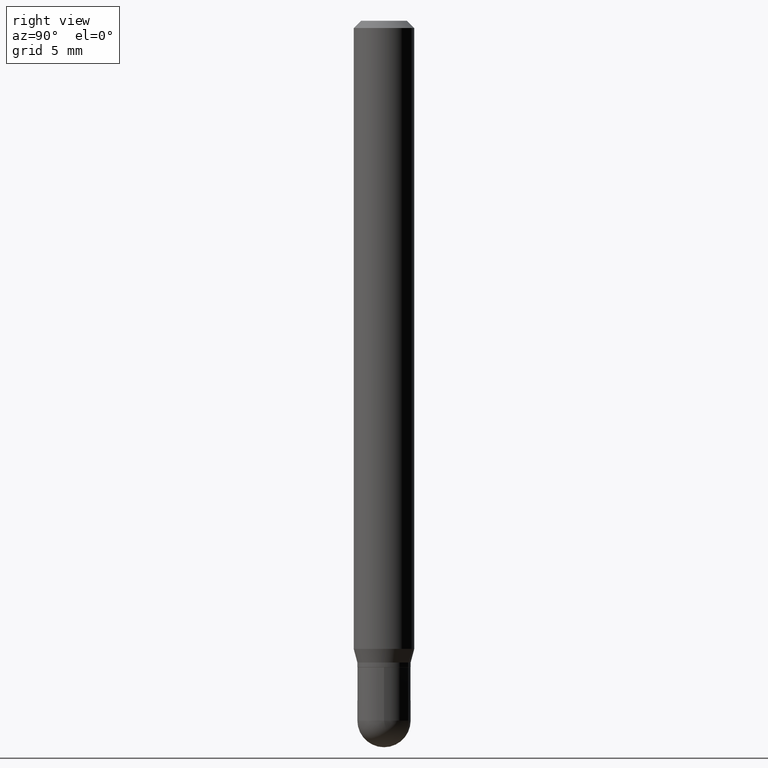
[diagram: clean part render]
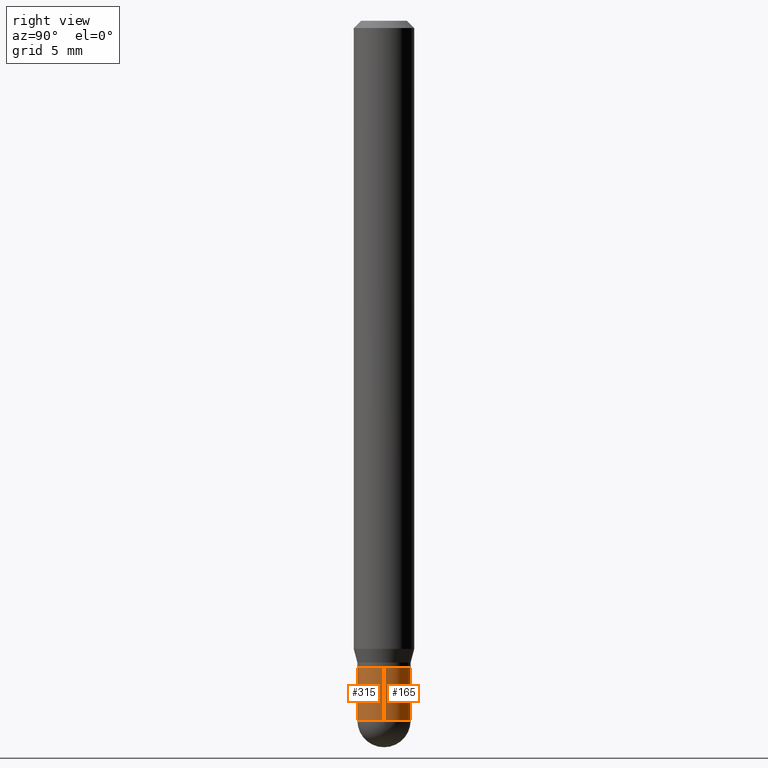
[diagram: same view with one multi-face feature highlighted, each face labeled with its STEP entity id]
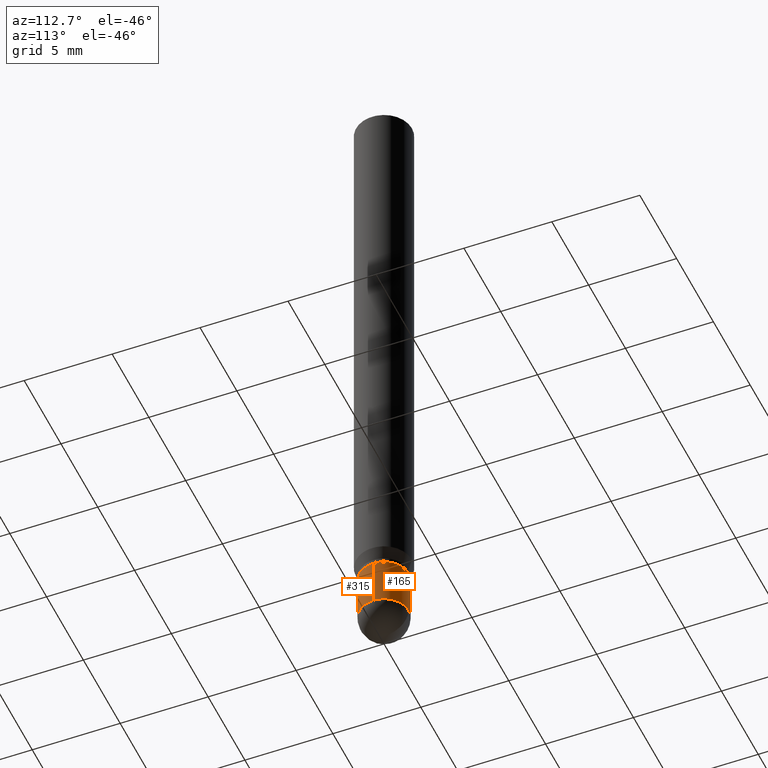
[diagram: same view with one multi-face feature highlighted, each face labeled with its STEP entity id]
A machine part, right view. The highlighted faces form ONE feature: a constant-radius fillet chain: 2 tangent blend faces with common blend radius 1.397 mm. The faces share edges in the B-rep.
A second angle (auxiliary view) of the same feature is appended — it is thin or edge-on in the first view.
Their STEP definitions:
[1] entity #315 (Cylinder):
#2 = CIRCLE ( 'NONE', #295, 0.05500000000000000028 ) ;
#20 = EDGE_CURVE ( 'NONE', #286, #442, #2, .T. ) ;
#23 = ORIENTED_EDGE ( 'NONE', *, *, #212, .F. ) ;
#34 = CARTESIAN_POINT ( 'NONE',  ( 0.05500000000000000028, -3.840629472727446888E-16, 2.681897226687764826E-30 ) ) ;
#36 = CARTESIAN_POINT ( 'NONE',  ( -0.05500000000000000028, -4.462360556323917743E-15, -1.445000000000000062 ) ) ;
#50 = VECTOR ( 'NONE', #249, 39.37007874015748143 ) ;
#52 = LINE ( 'NONE', #201, #50 ) ;
#58 = ORIENTED_EDGE ( 'NONE', *, *, #429, .T. ) ;
#63 = DIRECTION ( 'NONE',  ( -2.445468806185136877E-29, 3.491481338843145188E-15, 1.000000000000000000 ) ) ;
#86 = ORIENTED_EDGE ( 'NONE', *, *, #20, .T. ) ;
#100 = DIRECTION ( 'NONE',  ( 1.000000000000000000, -6.982962677686262766E-15, 0.000000000000000000 ) ) ;
#123 = CIRCLE ( 'NONE', #218, 0.05500000000000000028 ) ;
#144 = DIRECTION ( 'NONE',  ( 1.000000000000000000, -6.982962677686262766E-15, 0.000000000000000000 ) ) ;
#147 = CARTESIAN_POINT ( 'NONE',  ( -0.05500000000000000028, -4.462360556323917743E-15, -1.335000000000000187 ) ) ;
#150 = CARTESIAN_POINT ( 'NONE',  ( 0.05500000000000000028, -5.045190534628344107E-15, -1.335000000000000187 ) ) ;
#161 = AXIS2_PLACEMENT_3D ( 'NONE', #384, #502, #144 ) ;
#180 = DIRECTION ( 'NONE',  ( -2.445468806185136597E-29, 3.491481338843145583E-15, 1.000000000000000000 ) ) ;
#181 = CARTESIAN_POINT ( 'NONE',  ( 0.05500000000000000028, -5.237222008264716599E-15, -1.445000000000000062 ) ) ;
#182 = VERTEX_POINT ( 'NONE', #150 ) ;
#183 = DIRECTION ( 'NONE',  ( 1.000000000000000000, -6.982962677686266711E-15, 4.876176775795935793E-29 ) ) ;
#201 = CARTESIAN_POINT ( 'NONE',  ( -0.05500000000000000028, 3.907985046680551042E-16, -2.705414299640198362E-30 ) ) ;
#204 = ORIENTED_EDGE ( 'NONE', *, *, #317, .T. ) ;
#206 = FACE_OUTER_BOUND ( 'NONE', #395, .T. ) ;
#212 = EDGE_CURVE ( 'NONE', #417, #182, #123, .T. ) ;
#218 = AXIS2_PLACEMENT_3D ( 'NONE', #352, #349, #509 ) ;
#222 = LINE ( 'NONE', #34, #465 ) ;
#249 = DIRECTION ( 'NONE',  ( -2.445468806185136877E-29, 3.491481338843145188E-15, 1.000000000000000000 ) ) ;
#257 = ORIENTED_EDGE ( 'NONE', *, *, #285, .F. ) ;
#263 = CARTESIAN_POINT ( 'NONE',  ( 0.000000000000000000, 0.000000000000000000, 0.000000000000000000 ) ) ;
#285 = EDGE_CURVE ( 'NONE', #330, #417, #52, .T. ) ;
#286 = VERTEX_POINT ( 'NONE', #405 ) ;
#295 = AXIS2_PLACEMENT_3D ( 'NONE', #452, #180, #100 ) ;
#315 = ADVANCED_FACE ( 'NONE', ( #206 ), #373, .T. ) ;
#317 = EDGE_CURVE ( 'NONE', #330, #286, #393, .T. ) ;
#330 = VERTEX_POINT ( 'NONE', #36 ) ;
#343 = DIRECTION ( 'NONE',  ( -2.445468806185136597E-29, 3.491481338843145583E-15, 1.000000000000000000 ) ) ;
#349 = DIRECTION ( 'NONE',  ( -2.445468806185136597E-29, 3.491481338843145583E-15, 1.000000000000000000 ) ) ;
#352 = CARTESIAN_POINT ( 'NONE',  ( 3.264700856257157760E-29, -4.661127587355599122E-15, -1.335000000000000187 ) ) ;
#373 = CYLINDRICAL_SURFACE ( 'NONE', #388, 0.05500000000000000028 ) ;
#384 = CARTESIAN_POINT ( 'NONE',  ( 3.533702424937522517E-29, -5.045190534628345684E-15, -1.445000000000000062 ) ) ;
#388 = AXIS2_PLACEMENT_3D ( 'NONE', #263, #343, #183 ) ;
#393 = CIRCLE ( 'NONE', #161, 0.05500000000000000028 ) ;
#395 = EDGE_LOOP ( 'NONE', ( #257, #204, #86, #58, #23 ) ) ;
#405 = CARTESIAN_POINT ( 'NONE',  ( -3.840629472727094859E-16, -0.05500000000000507955, -1.444999999999999840 ) ) ;
#417 = VERTEX_POINT ( 'NONE', #147 ) ;
#429 = EDGE_CURVE ( 'NONE', #442, #182, #222, .T. ) ;
#442 = VERTEX_POINT ( 'NONE', #181 ) ;
#452 = CARTESIAN_POINT ( 'NONE',  ( 3.533702424937522517E-29, -5.045190534628345684E-15, -1.445000000000000062 ) ) ;
#465 = VECTOR ( 'NONE', #63, 39.37007874015748143 ) ;
#502 = DIRECTION ( 'NONE',  ( -2.445468806185136597E-29, 3.491481338843145583E-15, 1.000000000000000000 ) ) ;
#509 = DIRECTION ( 'NONE',  ( 1.000000000000000000, -6.982962677686262766E-15, 0.000000000000000000 ) ) ;
[2] entity #165 (Cylinder):
#1 = DIRECTION ( 'NONE',  ( 1.000000000000000000, -6.982962677686266711E-15, 4.876176775795935793E-29 ) ) ;
#13 = VERTEX_POINT ( 'NONE', #342 ) ;
#34 = CARTESIAN_POINT ( 'NONE',  ( 0.05500000000000000028, -3.840629472727446888E-16, 2.681897226687764826E-30 ) ) ;
#36 = CARTESIAN_POINT ( 'NONE',  ( -0.05500000000000000028, -4.462360556323917743E-15, -1.445000000000000062 ) ) ;
#47 = ORIENTED_EDGE ( 'NONE', *, *, #429, .F. ) ;
#50 = VECTOR ( 'NONE', #249, 39.37007874015748143 ) ;
#52 = LINE ( 'NONE', #201, #50 ) ;
#63 = DIRECTION ( 'NONE',  ( -2.445468806185136877E-29, 3.491481338843145188E-15, 1.000000000000000000 ) ) ;
#64 = ORIENTED_EDGE ( 'NONE', *, *, #153, .T. ) ;
#111 = CARTESIAN_POINT ( 'NONE',  ( 0.000000000000000000, 0.000000000000000000, 0.000000000000000000 ) ) ;
#112 = DIRECTION ( 'NONE',  ( -2.445468806185136597E-29, 3.491481338843145583E-15, 1.000000000000000000 ) ) ;
#113 = DIRECTION ( 'NONE',  ( -2.445468806185136597E-29, 3.491481338843145583E-15, 1.000000000000000000 ) ) ;
#115 = CIRCLE ( 'NONE', #234, 0.05500000000000000028 ) ;
#117 = DIRECTION ( 'NONE',  ( 1.000000000000000000, -6.982962677686262766E-15, 0.000000000000000000 ) ) ;
#125 = EDGE_CURVE ( 'NONE', #442, #13, #115, .T. ) ;
#130 = EDGE_CURVE ( 'NONE', #182, #417, #132, .T. ) ;
#132 = CIRCLE ( 'NONE', #400, 0.05500000000000000028 ) ;
#147 = CARTESIAN_POINT ( 'NONE',  ( -0.05500000000000000028, -4.462360556323917743E-15, -1.335000000000000187 ) ) ;
#148 = DIRECTION ( 'NONE',  ( -2.445468806185136597E-29, 3.491481338843145583E-15, 1.000000000000000000 ) ) ;
#149 = CARTESIAN_POINT ( 'NONE',  ( 3.264700856257157760E-29, -4.661127587355599122E-15, -1.335000000000000187 ) ) ;
#150 = CARTESIAN_POINT ( 'NONE',  ( 0.05500000000000000028, -5.045190534628344107E-15, -1.335000000000000187 ) ) ;
#153 = EDGE_CURVE ( 'NONE', #13, #330, #198, .T. ) ;
#165 = ADVANCED_FACE ( 'NONE', ( #188 ), #430, .T. ) ;
#178 = AXIS2_PLACEMENT_3D ( 'NONE', #354, #221, #117 ) ;
#181 = CARTESIAN_POINT ( 'NONE',  ( 0.05500000000000000028, -5.237222008264716599E-15, -1.445000000000000062 ) ) ;
#182 = VERTEX_POINT ( 'NONE', #150 ) ;
#188 = FACE_OUTER_BOUND ( 'NONE', #457, .T. ) ;
#193 = DIRECTION ( 'NONE',  ( 1.000000000000000000, -6.982962677686262766E-15, 0.000000000000000000 ) ) ;
#198 = CIRCLE ( 'NONE', #178, 0.05500000000000000028 ) ;
#201 = CARTESIAN_POINT ( 'NONE',  ( -0.05500000000000000028, 3.907985046680551042E-16, -2.705414299640198362E-30 ) ) ;
#208 = AXIS2_PLACEMENT_3D ( 'NONE', #111, #148, #1 ) ;
#221 = DIRECTION ( 'NONE',  ( -2.445468806185136597E-29, 3.491481338843145583E-15, 1.000000000000000000 ) ) ;
#222 = LINE ( 'NONE', #34, #465 ) ;
#234 = AXIS2_PLACEMENT_3D ( 'NONE', #274, #112, #511 ) ;
#249 = DIRECTION ( 'NONE',  ( -2.445468806185136877E-29, 3.491481338843145188E-15, 1.000000000000000000 ) ) ;
#274 = CARTESIAN_POINT ( 'NONE',  ( 3.533702424937522517E-29, -5.045190534628345684E-15, -1.445000000000000062 ) ) ;
#284 = ORIENTED_EDGE ( 'NONE', *, *, #285, .T. ) ;
#285 = EDGE_CURVE ( 'NONE', #330, #417, #52, .T. ) ;
#289 = ORIENTED_EDGE ( 'NONE', *, *, #125, .T. ) ;
#330 = VERTEX_POINT ( 'NONE', #36 ) ;
#342 = CARTESIAN_POINT ( 'NONE',  ( 3.907985046680906029E-16, 0.05499999999999497652, -1.445000000000000284 ) ) ;
#354 = CARTESIAN_POINT ( 'NONE',  ( 3.533702424937522517E-29, -5.045190534628345684E-15, -1.445000000000000062 ) ) ;
#400 = AXIS2_PLACEMENT_3D ( 'NONE', #149, #113, #193 ) ;
#417 = VERTEX_POINT ( 'NONE', #147 ) ;
#429 = EDGE_CURVE ( 'NONE', #442, #182, #222, .T. ) ;
#430 = CYLINDRICAL_SURFACE ( 'NONE', #208, 0.05500000000000000028 ) ;
#442 = VERTEX_POINT ( 'NONE', #181 ) ;
#448 = ORIENTED_EDGE ( 'NONE', *, *, #130, .F. ) ;
#457 = EDGE_LOOP ( 'NONE', ( #64, #284, #448, #47, #289 ) ) ;
#465 = VECTOR ( 'NONE', #63, 39.37007874015748143 ) ;
#511 = DIRECTION ( 'NONE',  ( 1.000000000000000000, -6.982962677686262766E-15, 0.000000000000000000 ) ) ;